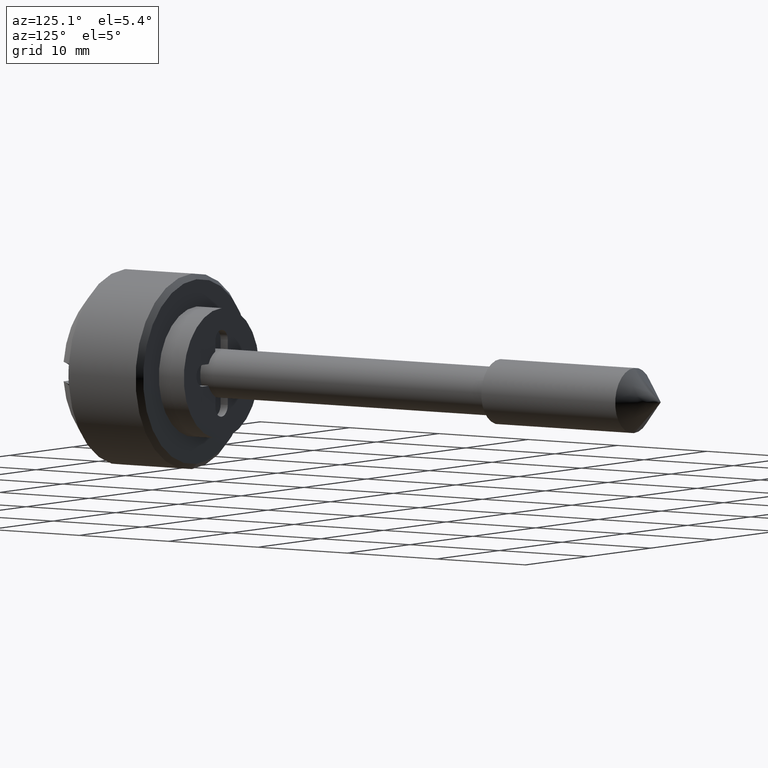
[diagram: clean part render]
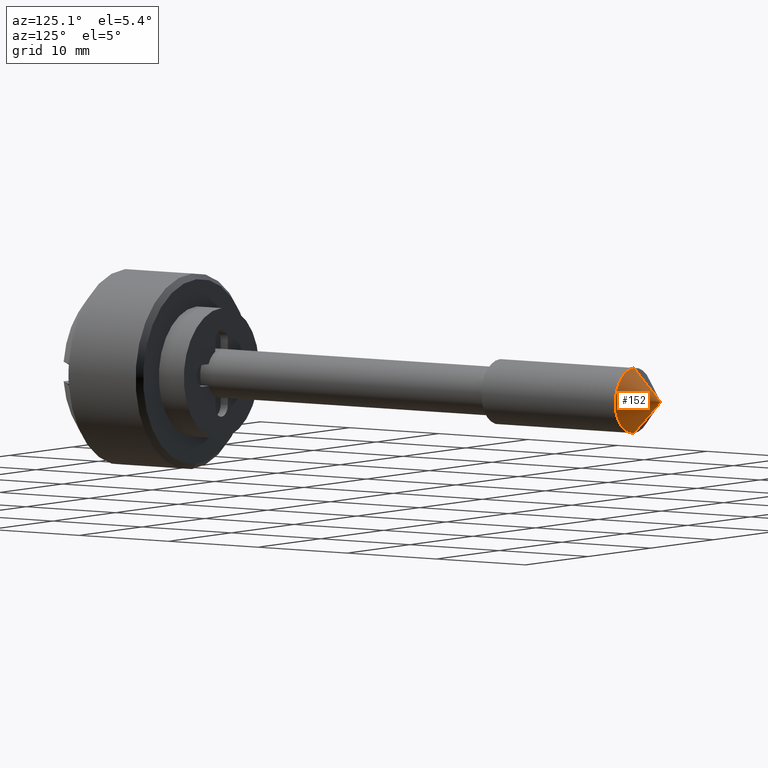
[diagram: same view with one face highlighted and labeled with its STEP entity id]
A machine part, auxiliary view. The second image highlights one B-rep face of the part: STEP entity #152.
In plain terms, the highlighted face is a freeform B-spline surface patch.
Its self-contained STEP definition (entity closure, byte-faithful):
#152=ADVANCED_FACE('',(#560),#559,.T.);
#559=( BOUNDED_SURFACE() B_SPLINE_SURFACE( 2,1,((#808,#809),(#810,#811),(#812,#813),(#814,#815),(#816,#817)), .UNSPECIFIED.,.F.,.F.,.F.) B_SPLINE_SURFACE_WITH_KNOTS((3,2,3),(2,2),(0.00000000000E+00,5.00000000000E-01,1.00000000000E+00),(0.00000000000E+00,1.00000000000E+00), .UNSPECIFIED. ) GEOMETRIC_REPRESENTATION_ITEM() RATIONAL_B_SPLINE_SURFACE(((1.00000000000E+00,1.00000000000E+00),(7.07106781187E-01,7.07106781187E-01),(1.00000000000E+00,1.00000000000E+00),(7.07106781187E-01,7.07106781187E-01),(1.00000000000E+00,1.00000000000E+00))) REPRESENTATION_ITEM('') SURFACE() );
#560=FACE_OUTER_BOUND('',#818,.T.);
#808=CARTESIAN_POINT('',(5.00000000000E+01,0.00000000000E+00,0.00000000000E+00));
#809=CARTESIAN_POINT('',(4.57573593129E+01,-1.03914726748E-15,-4.24264068712E+00));
#810=CARTESIAN_POINT('',(5.00000000000E+01,0.00000000000E+00,0.00000000000E+00));
#811=CARTESIAN_POINT('',(4.57573593129E+01,-4.24264068712E+00,-4.24264068712E+00));
#812=CARTESIAN_POINT('',(5.00000000000E+01,0.00000000000E+00,0.00000000000E+00));
#813=CARTESIAN_POINT('',(4.57573593129E+01,-4.24264068712E+00,7.79360450612E-16));
#814=CARTESIAN_POINT('',(5.00000000000E+01,0.00000000000E+00,0.00000000000E+00));
#815=CARTESIAN_POINT('',(4.57573593129E+01,-4.24264068712E+00,4.24264068712E+00));
#816=CARTESIAN_POINT('',(5.00000000000E+01,0.00000000000E+00,0.00000000000E+00));
#817=CARTESIAN_POINT('',(4.57573593129E+01,5.19573633741E-16,4.24264068712E+00));
#818=EDGE_LOOP('',(#1024,#1025,#1026));
#1024=ORIENTED_EDGE('',*,*,#1127,.F.);
#1025=ORIENTED_EDGE('',*,*,#1128,.F.);
#1026=ORIENTED_EDGE('',*,*,#1129,.T.);
#1127=EDGE_CURVE('',#1757,#1756,#1776,.T.);
#1128=EDGE_CURVE('',#1782,#1757,#1783,.T.);
#1129=EDGE_CURVE('',#1782,#1756,#1789,.T.);
#1756=VERTEX_POINT('',#2173);
#1757=VERTEX_POINT('',#2174);
#1776=CIRCLE('',#2186,3.00000000000E+00);
#1782=VERTEX_POINT('',#2187);
#1783=(BOUNDED_CURVE() B_SPLINE_CURVE(1,(#2188,#2189),.UNSPECIFIED.,.F.,.F.) B_SPLINE_CURVE_WITH_KNOTS((2,2),(0.00000000000E+00,7.07106783987E-01),.UNSPECIFIED.) CURVE() GEOMETRIC_REPRESENTATION_ITEM() RATIONAL_B_SPLINE_CURVE((1.00000000000E+00,1.00000000000E+00)) REPRESENTATION_ITEM('') );
#1789=(BOUNDED_CURVE() B_SPLINE_CURVE(1,(#2190,#2191),.UNSPECIFIED.,.F.,.F.) B_SPLINE_CURVE_WITH_KNOTS((2,2),(0.00000000000E+00,7.07106780467E-01),.UNSPECIFIED.) CURVE() GEOMETRIC_REPRESENTATION_ITEM() RATIONAL_B_SPLINE_CURVE((7.50000000000E-01,7.50000000000E-01)) REPRESENTATION_ITEM('') );
#2173=CARTESIAN_POINT('',(4.70000000000E+01,0.00000000000E+00,3.00000000000E+00));
#2174=CARTESIAN_POINT('',(4.70000000000E+01,-1.48029736617E-16,-3.00000000000E+00));
#2183=CARTESIAN_POINT('',(4.70000000000E+01,0.00000000000E+00,0.00000000000E+00));
#2184=DIRECTION('',(-1.00000000000E+00,0.00000000000E+00,0.00000000000E+00));
#2185=DIRECTION('',(0.00000000000E+00,-1.22460635382E-16,1.00000000000E+00));
#2186=AXIS2_PLACEMENT_3D('',#2183,#2184,#2185);
#2187=CARTESIAN_POINT('',(5.00000000000E+01,0.00000000000E+00,0.00000000000E+00));
#2188=CARTESIAN_POINT('',(5.00000000000E+01,0.00000000000E+00,0.00000000000E+00));
#2189=CARTESIAN_POINT('',(4.69999999881E+01,-7.34788082398E-16,-3.00000001188E+00));
#2190=CARTESIAN_POINT('',(5.00000000000E+01,0.00000000000E+00,0.00000000000E+00));
#2191=CARTESIAN_POINT('',(4.70000000031E+01,8.37382643779E-16,2.99999999695E+00));